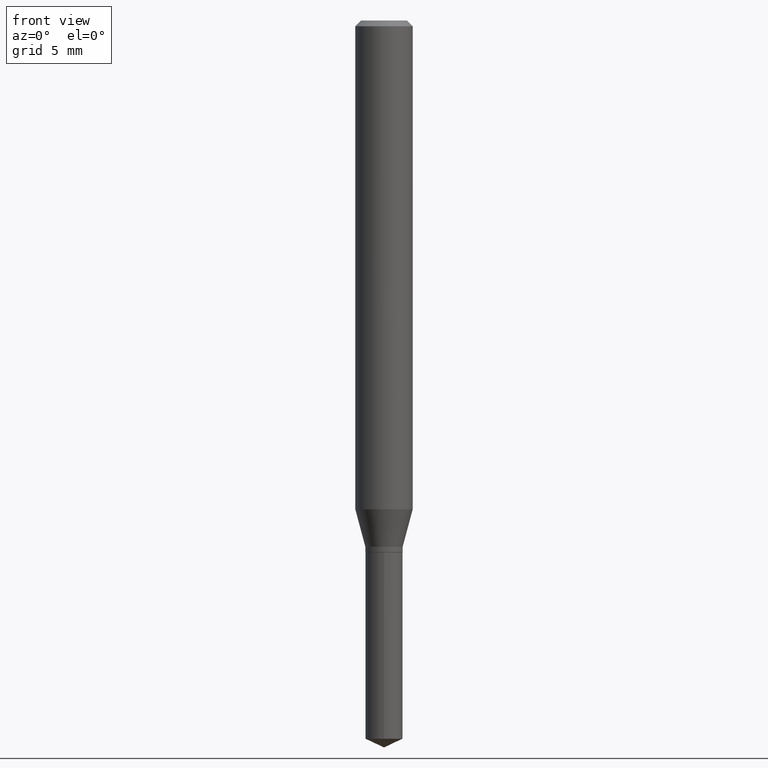
[diagram: clean part render]
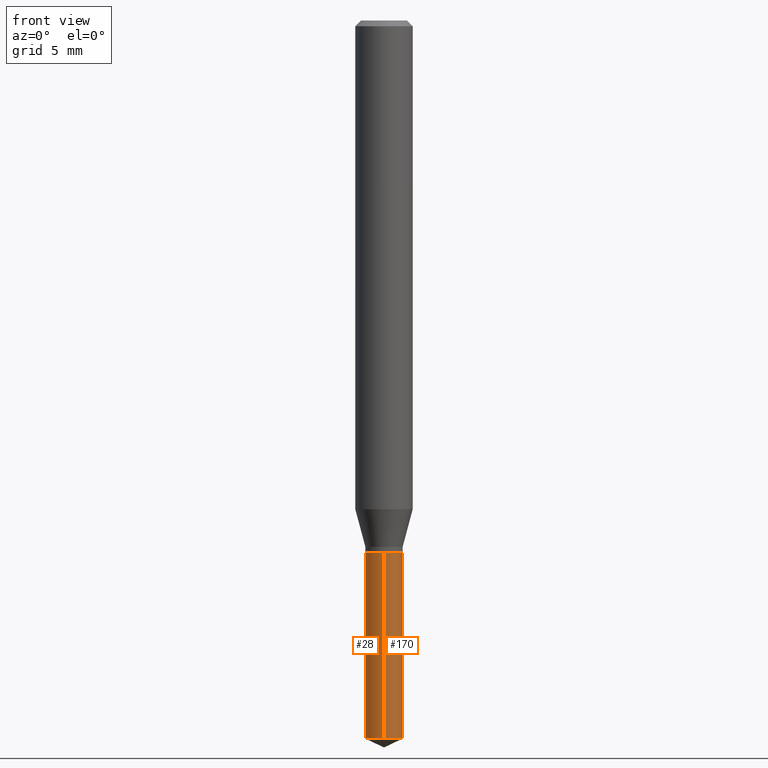
[diagram: same view with one multi-face feature highlighted, each face labeled with its STEP entity id]
A machine part, front view. The highlighted faces form ONE feature: a constant-radius fillet chain: 2 tangent blend faces with common blend radius 0.9754 mm. The faces share edges in the B-rep.
Their STEP definitions:
[1] entity #28 (Cylinder):
#26 = ORIENTED_EDGE ( 'NONE', *, *, #338, .F. ) ;
#28 = ADVANCED_FACE ( 'NONE', ( #90 ), #85, .T. ) ;
#64 = CARTESIAN_POINT ( 'NONE',  ( 2.728484105319146858E-16, 0.03839999999999618718, -1.094500000000000028 ) ) ;
#85 = CYLINDRICAL_SURFACE ( 'NONE', #208, 0.03840000000000000357 ) ;
#90 = FACE_OUTER_BOUND ( 'NONE', #481, .T. ) ;
#94 = CARTESIAN_POINT ( 'NONE',  ( -2.681457668231258890E-16, -0.03840000000000381997, -1.094499999999999806 ) ) ;
#102 = ORIENTED_EDGE ( 'NONE', *, *, #444, .T. ) ;
#108 = EDGE_CURVE ( 'NONE', #265, #221, #355, .T. ) ;
#141 = VECTOR ( 'NONE', #402, 39.37007874015748143 ) ;
#147 = DIRECTION ( 'NONE',  ( -6.982962677686265133E-15, -1.000000000000000000, 3.557093741750342424E-15 ) ) ;
#157 = CIRCLE ( 'NONE', #179, 0.03840000000000000357 ) ;
#171 = DIRECTION ( 'NONE',  ( -2.445458899330790108E-29, 3.491495526022433205E-15, 1.000000000000000000 ) ) ;
#179 = AXIS2_PLACEMENT_3D ( 'NONE', #329, #478, #147 ) ;
#188 = CIRCLE ( 'NONE', #244, 0.03840000000000000357 ) ;
#208 = AXIS2_PLACEMENT_3D ( 'NONE', #459, #171, #231 ) ;
#211 = DIRECTION ( 'NONE',  ( -2.445458899330790108E-29, 3.491495526022433205E-15, 1.000000000000000000 ) ) ;
#213 = CARTESIAN_POINT ( 'NONE',  ( 3.614872991782365897E-29, -5.161091462290022333E-15, -1.478193785926848136 ) ) ;
#221 = VERTEX_POINT ( 'NONE', #64 ) ;
#231 = DIRECTION ( 'NONE',  ( -6.982962677686265133E-15, -1.000000000000000000, 3.557093741750342424E-15 ) ) ;
#244 = AXIS2_PLACEMENT_3D ( 'NONE', #213, #211, #365 ) ;
#249 = CARTESIAN_POINT ( 'NONE',  ( -2.681457668231258890E-16, -0.03840000000000381997, -1.094499999999999806 ) ) ;
#261 = ORIENTED_EDGE ( 'NONE', *, *, #108, .F. ) ;
#265 = VERTEX_POINT ( 'NONE', #474 ) ;
#279 = DIRECTION ( 'NONE',  ( -2.445458899330790108E-29, 3.491495526022433599E-15, 1.000000000000000000 ) ) ;
#290 = VERTEX_POINT ( 'NONE', #399 ) ;
#296 = VECTOR ( 'NONE', #279, 39.37007874015748143 ) ;
#329 = CARTESIAN_POINT ( 'NONE',  ( 2.676565608369631794E-29, -3.821426325363822773E-15, -1.094499999999999806 ) ) ;
#335 = EDGE_CURVE ( 'NONE', #265, #290, #188, .T. ) ;
#338 = EDGE_CURVE ( 'NONE', #221, #404, #157, .T. ) ;
#355 = LINE ( 'NONE', #384, #296 ) ;
#365 = DIRECTION ( 'NONE',  ( -6.982962677686266711E-15, -1.000000000000000000, 0.000000000000000000 ) ) ;
#384 = CARTESIAN_POINT ( 'NONE',  ( 2.728484105319052194E-16, 0.03839999999999618024, -1.094500000000000028 ) ) ;
#399 = CARTESIAN_POINT ( 'NONE',  ( -2.681457668231165706E-16, -0.03840000000000517999, -1.478193785926848136 ) ) ;
#402 = DIRECTION ( 'NONE',  ( -2.445458899330790108E-29, 3.491495526022433599E-15, 1.000000000000000000 ) ) ;
#404 = VERTEX_POINT ( 'NONE', #94 ) ;
#419 = ORIENTED_EDGE ( 'NONE', *, *, #335, .T. ) ;
#444 = EDGE_CURVE ( 'NONE', #290, #404, #477, .T. ) ;
#459 = CARTESIAN_POINT ( 'NONE',  ( 2.676565608369631794E-29, -3.821426325363822773E-15, -1.094499999999999806 ) ) ;
#474 = CARTESIAN_POINT ( 'NONE',  ( 2.728484105319146858E-16, 0.03839999999999485492, -1.478193785926848136 ) ) ;
#477 = LINE ( 'NONE', #249, #141 ) ;
#478 = DIRECTION ( 'NONE',  ( -2.445458899330790108E-29, 3.491495526022433205E-15, 1.000000000000000000 ) ) ;
#481 = EDGE_LOOP ( 'NONE', ( #261, #419, #102, #26 ) ) ;
[2] entity #170 (Cylinder):
#8 = DIRECTION ( 'NONE',  ( -2.445458899330790108E-29, 3.491495526022433205E-15, 1.000000000000000000 ) ) ;
#36 = CIRCLE ( 'NONE', #43, 0.03840000000000000357 ) ;
#43 = AXIS2_PLACEMENT_3D ( 'NONE', #177, #286, #450 ) ;
#60 = CARTESIAN_POINT ( 'NONE',  ( 2.676565608369631794E-29, -3.821426325363822773E-15, -1.094499999999999806 ) ) ;
#63 = DIRECTION ( 'NONE',  ( -6.982962677686265133E-15, -1.000000000000000000, 3.557093741750342424E-15 ) ) ;
#64 = CARTESIAN_POINT ( 'NONE',  ( 2.728484105319146858E-16, 0.03839999999999618718, -1.094500000000000028 ) ) ;
#94 = CARTESIAN_POINT ( 'NONE',  ( -2.681457668231258890E-16, -0.03840000000000381997, -1.094499999999999806 ) ) ;
#108 = EDGE_CURVE ( 'NONE', #265, #221, #355, .T. ) ;
#114 = AXIS2_PLACEMENT_3D ( 'NONE', #391, #8, #122 ) ;
#122 = DIRECTION ( 'NONE',  ( -6.982962677686265133E-15, -1.000000000000000000, 3.557093741750342424E-15 ) ) ;
#131 = CYLINDRICAL_SURFACE ( 'NONE', #114, 0.03840000000000000357 ) ;
#141 = VECTOR ( 'NONE', #402, 39.37007874015748143 ) ;
#142 = DIRECTION ( 'NONE',  ( -2.445458899330790108E-29, 3.491495526022433205E-15, 1.000000000000000000 ) ) ;
#160 = ORIENTED_EDGE ( 'NONE', *, *, #108, .T. ) ;
#170 = ADVANCED_FACE ( 'NONE', ( #314 ), #131, .T. ) ;
#177 = CARTESIAN_POINT ( 'NONE',  ( 3.614872991782365897E-29, -5.161091462290022333E-15, -1.478193785926848136 ) ) ;
#180 = AXIS2_PLACEMENT_3D ( 'NONE', #60, #142, #63 ) ;
#194 = CIRCLE ( 'NONE', #180, 0.03840000000000000357 ) ;
#212 = ORIENTED_EDGE ( 'NONE', *, *, #422, .T. ) ;
#221 = VERTEX_POINT ( 'NONE', #64 ) ;
#249 = CARTESIAN_POINT ( 'NONE',  ( -2.681457668231258890E-16, -0.03840000000000381997, -1.094499999999999806 ) ) ;
#265 = VERTEX_POINT ( 'NONE', #474 ) ;
#279 = DIRECTION ( 'NONE',  ( -2.445458899330790108E-29, 3.491495526022433599E-15, 1.000000000000000000 ) ) ;
#286 = DIRECTION ( 'NONE',  ( -2.445458899330790108E-29, 3.491495526022433205E-15, 1.000000000000000000 ) ) ;
#290 = VERTEX_POINT ( 'NONE', #399 ) ;
#296 = VECTOR ( 'NONE', #279, 39.37007874015748143 ) ;
#314 = FACE_OUTER_BOUND ( 'NONE', #488, .T. ) ;
#355 = LINE ( 'NONE', #384, #296 ) ;
#378 = ORIENTED_EDGE ( 'NONE', *, *, #444, .F. ) ;
#384 = CARTESIAN_POINT ( 'NONE',  ( 2.728484105319052194E-16, 0.03839999999999618024, -1.094500000000000028 ) ) ;
#391 = CARTESIAN_POINT ( 'NONE',  ( 2.676565608369631794E-29, -3.821426325363822773E-15, -1.094499999999999806 ) ) ;
#399 = CARTESIAN_POINT ( 'NONE',  ( -2.681457668231165706E-16, -0.03840000000000517999, -1.478193785926848136 ) ) ;
#402 = DIRECTION ( 'NONE',  ( -2.445458899330790108E-29, 3.491495526022433599E-15, 1.000000000000000000 ) ) ;
#404 = VERTEX_POINT ( 'NONE', #94 ) ;
#422 = EDGE_CURVE ( 'NONE', #290, #265, #36, .T. ) ;
#444 = EDGE_CURVE ( 'NONE', #290, #404, #477, .T. ) ;
#450 = DIRECTION ( 'NONE',  ( -6.982962677686266711E-15, -1.000000000000000000, 0.000000000000000000 ) ) ;
#457 = ORIENTED_EDGE ( 'NONE', *, *, #479, .F. ) ;
#474 = CARTESIAN_POINT ( 'NONE',  ( 2.728484105319146858E-16, 0.03839999999999485492, -1.478193785926848136 ) ) ;
#477 = LINE ( 'NONE', #249, #141 ) ;
#479 = EDGE_CURVE ( 'NONE', #404, #221, #194, .T. ) ;
#488 = EDGE_LOOP ( 'NONE', ( #212, #160, #457, #378 ) ) ;